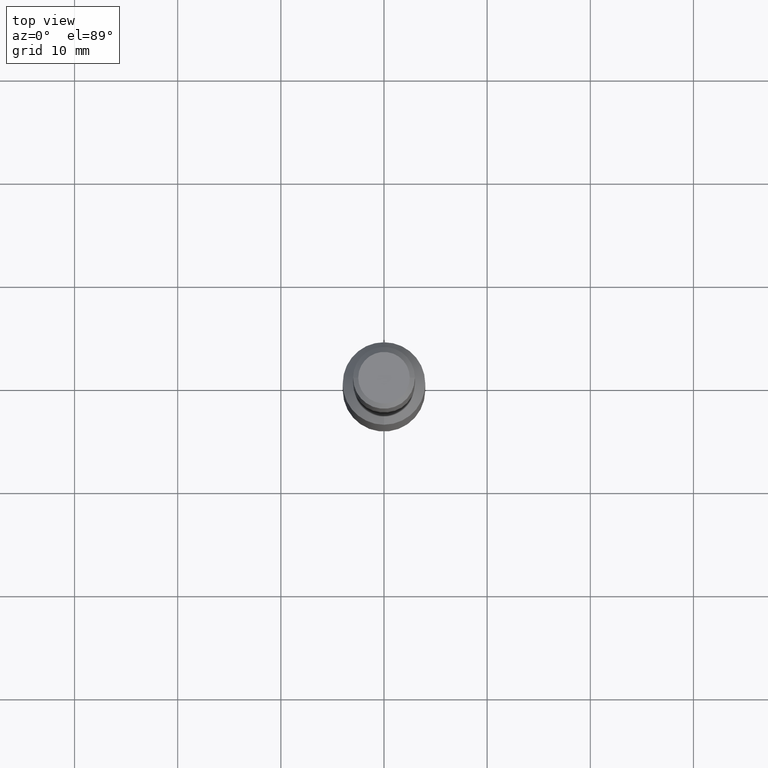
[diagram: clean part render]
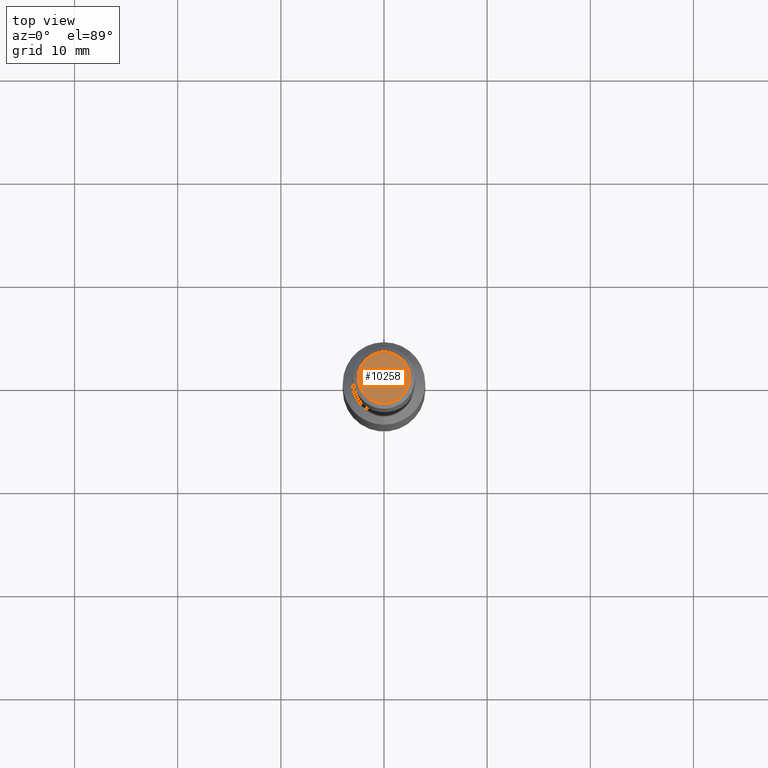
[diagram: same view with one face highlighted and labeled with its STEP entity id]
A machine part, top view. The second image highlights one B-rep face of the part: STEP entity #10258.
In plain terms, the highlighted planar face has unit normal (0, 0, 1).
Its self-contained STEP definition (entity closure, byte-faithful):
#1197 = DIRECTION ( 'NONE',  ( 0.0000000000000000000, 0.0000000000000000000, 1.000000000000000000 ) ) ;
#1363 = AXIS2_PLACEMENT_3D ( 'NONE', #5482, #1197, #8574 ) ;
#1553 = EDGE_LOOP ( 'NONE', ( #10592, #2601 ) ) ;
#2601 = ORIENTED_EDGE ( 'NONE', *, *, #10195, .T. ) ;
#2832 = DIRECTION ( 'NONE',  ( 1.000000000000000000, 0.0000000000000000000, 0.0000000000000000000 ) ) ;
#3893 = DIRECTION ( 'NONE',  ( 0.0000000000000000000, 0.0000000000000000000, 1.000000000000000000 ) ) ;
#5414 = VERTEX_POINT ( 'NONE', #8816 ) ;
#5482 = CARTESIAN_POINT ( 'NONE',  ( 0.0000000000000000000, 0.0000000000000000000, 70.00000000000000000 ) ) ;
#5754 = AXIS2_PLACEMENT_3D ( 'NONE', #13439, #3893, #12393 ) ;
#6006 = FACE_OUTER_BOUND ( 'NONE', #1553, .T. ) ;
#8574 = DIRECTION ( 'NONE',  ( 1.000000000000000000, 0.0000000000000000000, 0.0000000000000000000 ) ) ;
#8816 = CARTESIAN_POINT ( 'NONE',  ( -2.499999999999988500, 0.0000000000000000000, 70.00000000000000000 ) ) ;
#9233 = PLANE ( 'NONE',  #5754 ) ;
#10001 = AXIS2_PLACEMENT_3D ( 'NONE', #11275, #12211, #2832 ) ;
#10195 = EDGE_CURVE ( 'NONE', #11547, #5414, #11137, .T. ) ;
#10258 = ADVANCED_FACE ( 'NONE', ( #6006 ), #9233, .T. ) ;
#10592 = ORIENTED_EDGE ( 'NONE', *, *, #10819, .T. ) ;
#10657 = CARTESIAN_POINT ( 'NONE',  ( 2.499999999999988500, 3.367778697655214100E-016, 70.00000000000000000 ) ) ;
#10819 = EDGE_CURVE ( 'NONE', #5414, #11547, #11634, .T. ) ;
#11137 = CIRCLE ( 'NONE', #10001, 2.499999999999988500 ) ;
#11275 = CARTESIAN_POINT ( 'NONE',  ( 0.0000000000000000000, 0.0000000000000000000, 70.00000000000000000 ) ) ;
#11547 = VERTEX_POINT ( 'NONE', #10657 ) ;
#11634 = CIRCLE ( 'NONE', #1363, 2.499999999999988500 ) ;
#12211 = DIRECTION ( 'NONE',  ( 0.0000000000000000000, 0.0000000000000000000, 1.000000000000000000 ) ) ;
#12393 = DIRECTION ( 'NONE',  ( 1.000000000000000000, 0.0000000000000000000, -0.0000000000000000000 ) ) ;
#13439 = CARTESIAN_POINT ( 'NONE',  ( 0.0000000000000000000, 0.0000000000000000000, 70.00000000000000000 ) ) ;